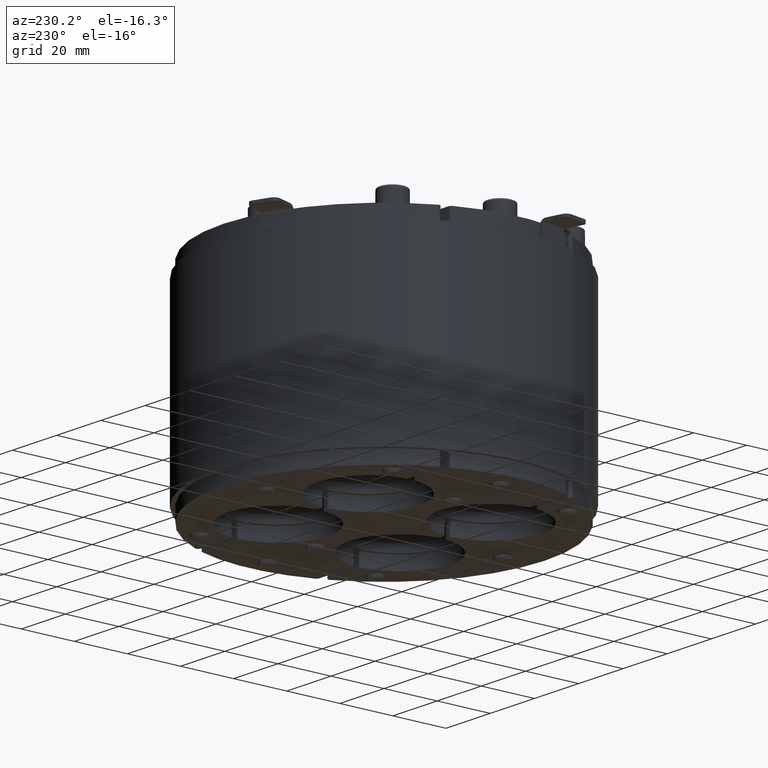
[diagram: clean part render]
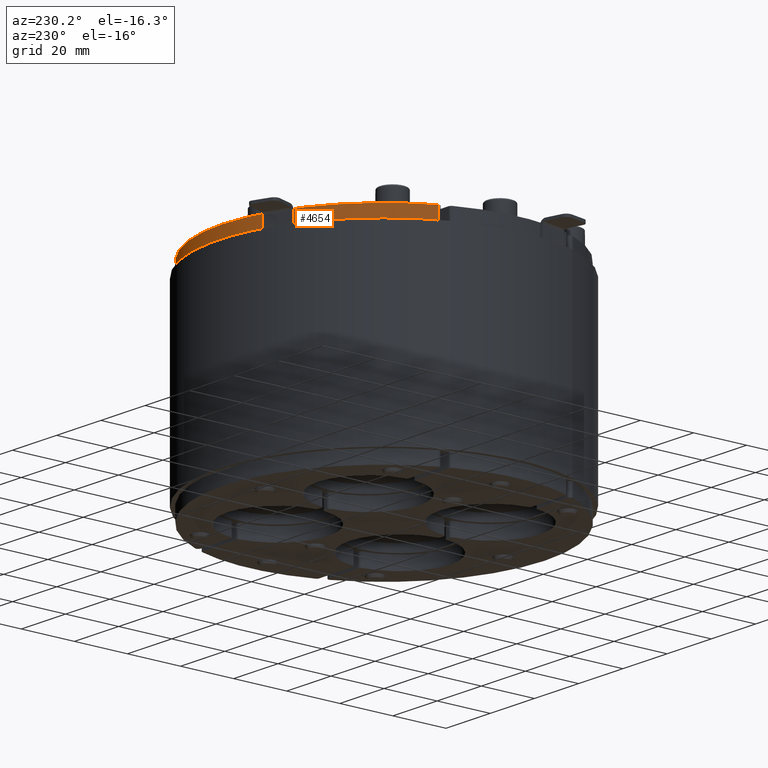
[diagram: same view with one face highlighted and labeled with its STEP entity id]
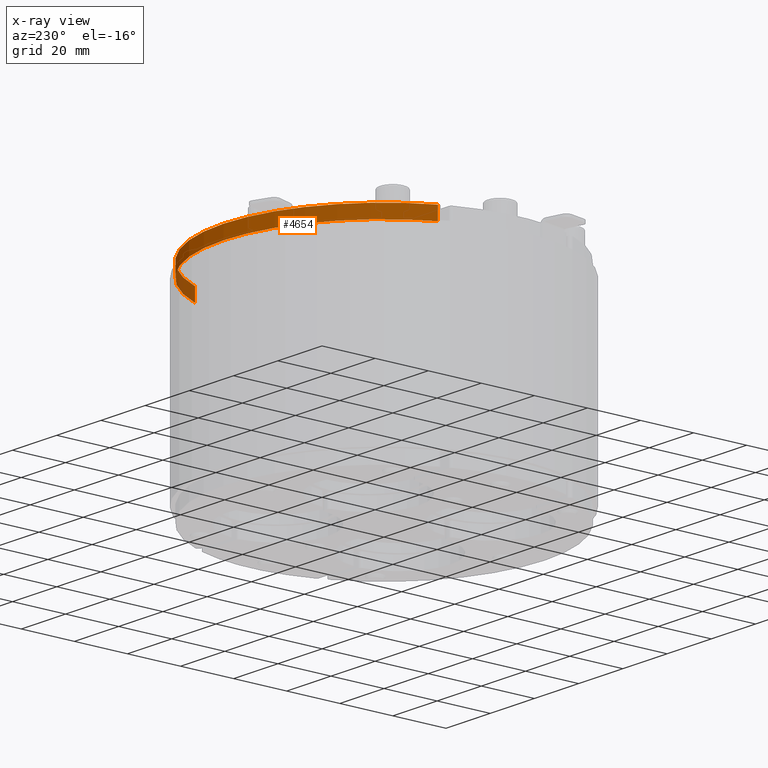
[diagram: x-ray of the same camera — body ghosted, the highlighted face saturated]
A machine part, auxiliary view. The second image highlights one B-rep face of the part: STEP entity #4654.
The next image is the same camera in x-ray: the body ghosted, the highlighted face saturated — about 7% of this face is hidden behind the body in this view.
In plain terms, the highlighted cylindrical surface (partial cylindrical patch) has radius 60.5 mm, axis along (0, -0, 1).
Its self-contained STEP definition (entity closure, byte-faithful):
#609=FACE_OUTER_BOUND('',#901,.T.);
#901=EDGE_LOOP('',(#3587,#3588,#3589,#3590));
#1205=LINE('',#7621,#1572);
#1221=LINE('',#7688,#1588);
#1572=VECTOR('',#6101,10.);
#1588=VECTOR('',#6173,10.);
#1947=CIRCLE('',#5277,60.5);
#1968=CIRCLE('',#5311,60.5);
#2233=VERTEX_POINT('',#7614);
#2236=VERTEX_POINT('',#7619);
#2239=VERTEX_POINT('',#7629);
#2259=VERTEX_POINT('',#7687);
#2711=EDGE_CURVE('',#2236,#2233,#1205,.T.);
#2715=EDGE_CURVE('',#2233,#2239,#1947,.F.);
#2744=EDGE_CURVE('',#2239,#2259,#1221,.T.);
#2752=EDGE_CURVE('',#2236,#2259,#1968,.F.);
#3587=ORIENTED_EDGE('',*,*,#2711,.F.);
#3588=ORIENTED_EDGE('',*,*,#2752,.T.);
#3589=ORIENTED_EDGE('',*,*,#2744,.F.);
#3590=ORIENTED_EDGE('',*,*,#2715,.F.);
#4506=CYLINDRICAL_SURFACE('',#5310,60.5);
#4654=ADVANCED_FACE('',(#609),#4506,.T.);
#5277=AXIS2_PLACEMENT_3D('',#7630,#6109,#6110);
#5310=AXIS2_PLACEMENT_3D('',#7702,#6191,#6192);
#5311=AXIS2_PLACEMENT_3D('',#7703,#6193,#6194);
#6101=DIRECTION('',(0.,0.,1.));
#6109=DIRECTION('center_axis',(0.,0.,-1.));
#6110=DIRECTION('ref_axis',(1.,0.,0.));
#6173=DIRECTION('',(0.,0.,-1.));
#6191=DIRECTION('center_axis',(0.,0.,1.));
#6192=DIRECTION('ref_axis',(1.,0.,0.));
#6193=DIRECTION('center_axis',(0.,0.,-1.));
#6194=DIRECTION('ref_axis',(1.,0.,0.));
#7614=CARTESIAN_POINT('',(54.9005014133199,25.4201680672269,5.));
#7619=CARTESIAN_POINT('',(54.9005014133199,25.4201680672269,0.));
#7621=CARTESIAN_POINT('',(54.9005014133199,25.4201680672269,0.));
#7629=CARTESIAN_POINT('',(-54.9005014133199,25.4201680672269,5.));
#7630=CARTESIAN_POINT('Origin',(0.,0.,5.));
#7687=CARTESIAN_POINT('',(-54.9005014133199,25.4201680672269,0.));
#7688=CARTESIAN_POINT('',(-54.9005014133199,25.4201680672269,0.));
#7702=CARTESIAN_POINT('Origin',(0.,0.,0.));
#7703=CARTESIAN_POINT('Origin',(0.,0.,0.));